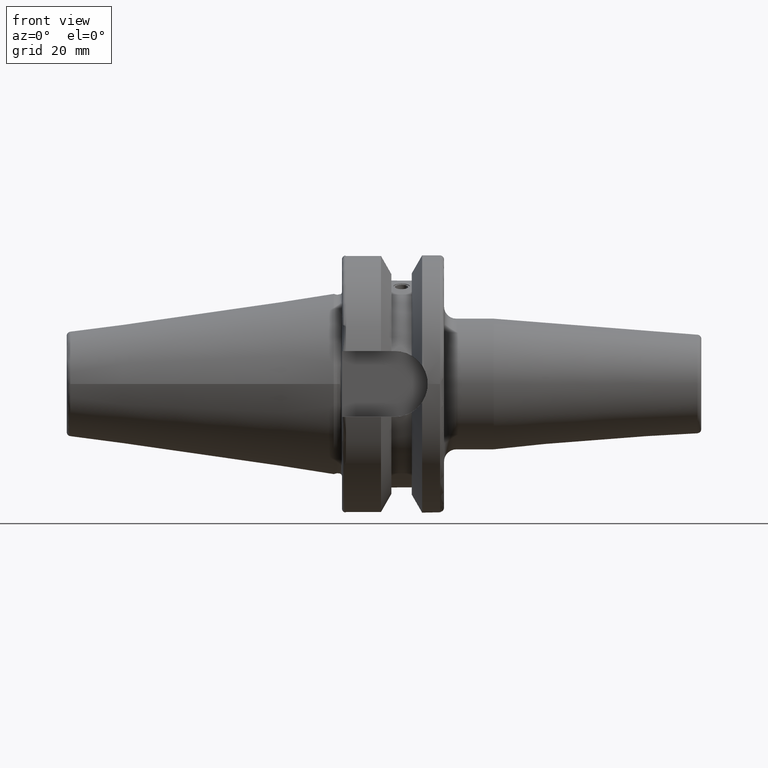
[diagram: clean part render]
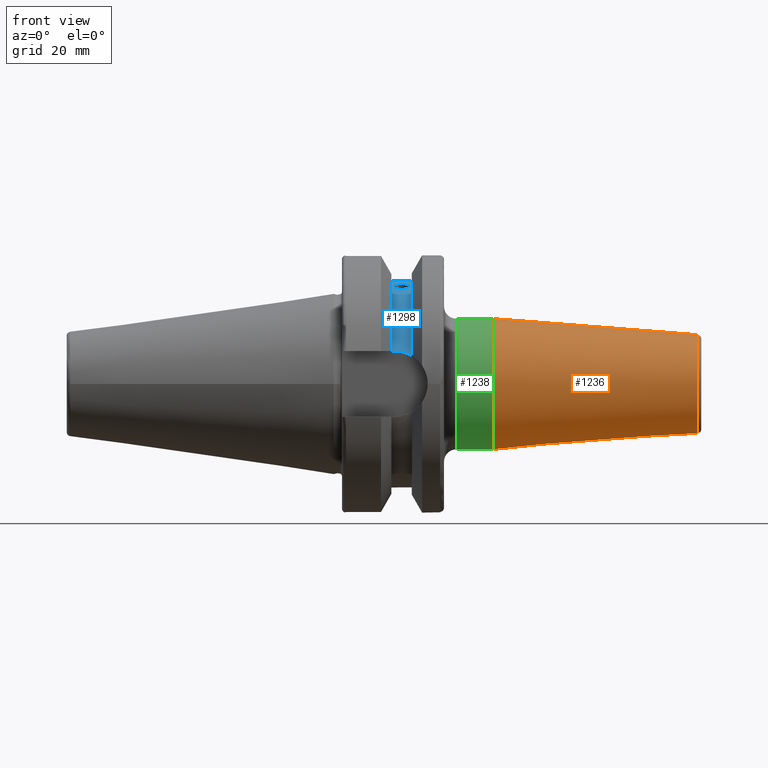
[diagram: same view with three faces highlighted in distinct colors, each labeled with its STEP entity id]
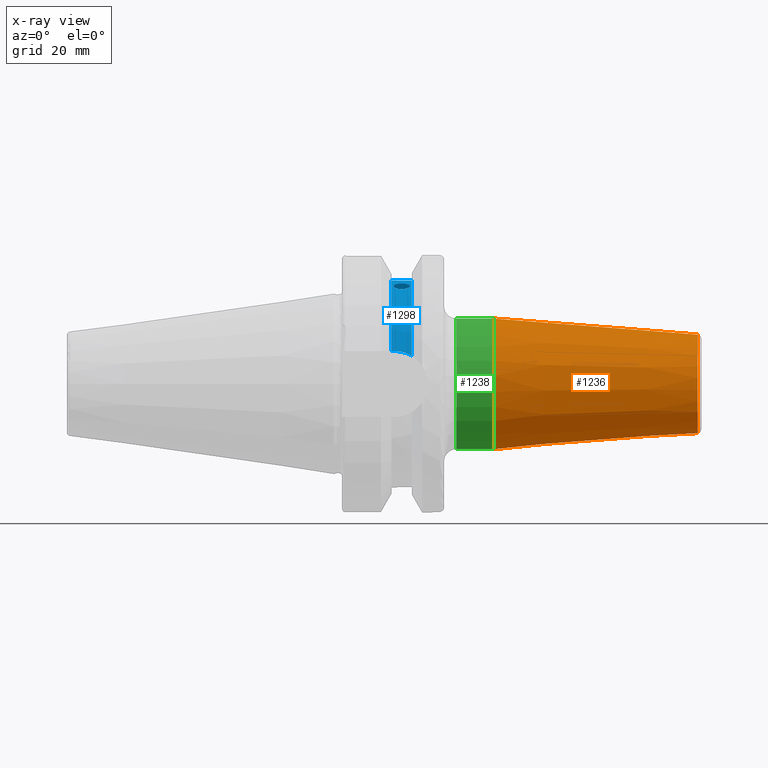
[diagram: x-ray of the same camera — body ghosted, the three highlighted faces saturated]
A machine part, front view with three faces highlighted in distinct colors.
The next image is the same camera in x-ray (body ghosted, the three faces saturated) — at least one of them is partly hidden behind the body in this view.
Their STEP definitions:

[orange] entity #1236 — the highlighted conical surface has half-angle 4.5 deg.
#125=CONICAL_SURFACE('',#1352,14.,0.0785398163397452);
#148=FACE_OUTER_BOUND('',#227,.T.);
#227=EDGE_LOOP('',(#872,#873,#874,#875));
#322=CIRCLE('',#1351,12.0725268420749);
#323=CIRCLE('',#1353,16.);
#391=LINE('',#1961,#457);
#457=VECTOR('',#1563,14.);
#531=VERTEX_POINT('',#1956);
#532=VERTEX_POINT('',#1960);
#662=EDGE_CURVE('',#531,#531,#322,.T.);
#663=EDGE_CURVE('',#531,#532,#391,.T.);
#664=EDGE_CURVE('',#532,#532,#323,.T.);
#872=ORIENTED_EDGE('',*,*,#662,.F.);
#873=ORIENTED_EDGE('',*,*,#663,.T.);
#874=ORIENTED_EDGE('',*,*,#664,.T.);
#875=ORIENTED_EDGE('',*,*,#663,.F.);
#1236=ADVANCED_FACE('',(#148),#125,.T.);
#1351=AXIS2_PLACEMENT_3D('',#1958,#1559,#1560);
#1352=AXIS2_PLACEMENT_3D('',#1959,#1561,#1562);
#1353=AXIS2_PLACEMENT_3D('',#1962,#1564,#1565);
#1559=DIRECTION('center_axis',(1.,0.,0.));
#1560=DIRECTION('ref_axis',(0.,0.,1.));
#1561=DIRECTION('center_axis',(-1.,0.,0.));
#1562=DIRECTION('ref_axis',(0.,0.,-1.));
#1563=DIRECTION('',(-0.996917333733128,-9.60846804471015E-18,0.0784590957278453));
#1564=DIRECTION('center_axis',(1.,0.,0.));
#1565=DIRECTION('ref_axis',(0.,0.,-1.));
#1956=CARTESIAN_POINT('',(89.0784590957279,-1.47845813547676E-15,12.0725268420749));
#1958=CARTESIAN_POINT('Origin',(89.0784590957279,-1.47845813547676E-15,
0.));
#1959=CARTESIAN_POINT('Origin',(64.5875905276507,0.,0.));
#1960=CARTESIAN_POINT('',(39.1751810553014,-1.95943487863577E-15,16.));
#1961=CARTESIAN_POINT('',(64.5875905276507,-1.71450551880629E-15,14.));
#1962=CARTESIAN_POINT('Origin',(39.1751810553015,0.,0.));

[blue] entity #1298 — the highlighted cylindrical surface (partial cylindrical patch) has radius 25.5 mm, axis along (1, 0, 0).
#26=B_SPLINE_CURVE_WITH_KNOTS('',3,(#2095,#2096,#2097,#2098,#2099,#2100,
#2101,#2102,#2103,#2104,#2105,#2106,#2107,#2108,#2109,#2110,#2111,#2112,
#2113,#2114,#2115,#2116,#2117,#2118,#2119,#2120),.UNSPECIFIED.,.F.,.F.,
(4,2,2,2,2,2,2,2,2,2,2,2,4),(0.,0.0753706034311402,0.15074120686228,0.226111713565584,
0.301482220268888,0.376852726972193,0.452223233675497,0.527593837106637,
0.602964440537777,0.678335043968917,0.753705647400057,0.829076154103362,
0.904446660806666),.UNSPECIFIED.);
#27=B_SPLINE_CURVE_WITH_KNOTS('',3,(#2121,#2122,#2123,#2124,#2125,#2126,
#2127,#2128,#2129,#2130),.UNSPECIFIED.,.F.,.F.,(4,2,2,2,4),(0.904446660806666,
0.97981716750997,1.05518767421327,1.13055827764441,1.20592888107555),
 .UNSPECIFIED.);
#35=B_SPLINE_CURVE_WITH_KNOTS('',3,(#2280,#2281,#2282,#2283,#2284,#2285),
 .UNSPECIFIED.,.F.,.F.,(4,2,4),(0.,0.305559393991992,0.418764848000603),
 .UNSPECIFIED.);
#42=B_SPLINE_CURVE_WITH_KNOTS('',3,(#2422,#2423,#2424,#2425,#2426,#2427),
 .UNSPECIFIED.,.F.,.F.,(4,2,4),(-0.418764848000603,-0.305559393991992,0.),
 .UNSPECIFIED.);
#63=FACE_BOUND('',#305,.T.);
#122=CYLINDRICAL_SURFACE('',#1490,25.5);
#210=FACE_OUTER_BOUND('',#304,.T.);
#304=EDGE_LOOP('',(#1185,#1186,#1187,#1188,#1189,#1190));
#305=EDGE_LOOP('',(#1191,#1192));
#380=CIRCLE('',#1489,25.5);
#381=CIRCLE('',#1491,25.5);
#416=LINE('',#2293,#482);
#435=LINE('',#2438,#501);
#482=VECTOR('',#1730,10.);
#501=VECTOR('',#1797,10.);
#553=VERTEX_POINT('',#2092);
#554=VERTEX_POINT('',#2094);
#584=VERTEX_POINT('',#2277);
#585=VERTEX_POINT('',#2279);
#588=VERTEX_POINT('',#2292);
#614=VERTEX_POINT('',#2419);
#615=VERTEX_POINT('',#2421);
#617=VERTEX_POINT('',#2437);
#695=EDGE_CURVE('',#554,#553,#26,.T.);
#696=EDGE_CURVE('',#553,#554,#27,.T.);
#739=EDGE_CURVE('',#585,#584,#35,.T.);
#743=EDGE_CURVE('',#588,#585,#416,.T.);
#782=EDGE_CURVE('',#615,#614,#42,.T.);
#785=EDGE_CURVE('',#614,#617,#435,.T.);
#823=EDGE_CURVE('',#617,#588,#380,.T.);
#824=EDGE_CURVE('',#615,#584,#381,.T.);
#1185=ORIENTED_EDGE('',*,*,#739,.T.);
#1186=ORIENTED_EDGE('',*,*,#824,.F.);
#1187=ORIENTED_EDGE('',*,*,#782,.T.);
#1188=ORIENTED_EDGE('',*,*,#785,.T.);
#1189=ORIENTED_EDGE('',*,*,#823,.T.);
#1190=ORIENTED_EDGE('',*,*,#743,.T.);
#1191=ORIENTED_EDGE('',*,*,#695,.T.);
#1192=ORIENTED_EDGE('',*,*,#696,.T.);
#1298=ADVANCED_FACE('',(#210,#63),#122,.T.);
#1489=AXIS2_PLACEMENT_3D('',#2526,#1893,#1894);
#1490=AXIS2_PLACEMENT_3D('',#2527,#1895,#1896);
#1491=AXIS2_PLACEMENT_3D('',#2528,#1897,#1898);
#1730=DIRECTION('',(1.,0.,0.));
#1797=DIRECTION('',(-1.,0.,0.));
#1893=DIRECTION('center_axis',(1.,0.,0.));
#1894=DIRECTION('ref_axis',(0.,0.,-1.));
#1895=DIRECTION('center_axis',(1.,0.,0.));
#1896=DIRECTION('ref_axis',(0.,1.,0.));
#1897=DIRECTION('center_axis',(1.,0.,0.));
#1898=DIRECTION('ref_axis',(0.,0.,-1.));
#2092=CARTESIAN_POINT('',(18.6,-8.72151365480455,23.9621618300407));
#2094=CARTESIAN_POINT('',(16.6,-10.5740324061887,23.2043064682587));
#2095=CARTESIAN_POINT('Ctrl Pts',(16.6,-10.5740324061887,23.2043064682587));
#2096=CARTESIAN_POINT('Ctrl Pts',(16.3487646552295,-10.5740324061887,23.2043064682587));
#2097=CARTESIAN_POINT('Ctrl Pts',(16.0808539398032,-10.5282360748462,23.2253464640325));
#2098=CARTESIAN_POINT('Ctrl Pts',(15.5881259002915,-10.341480204317,23.3091025219309));
#2099=CARTESIAN_POINT('Ctrl Pts',(15.3632997889944,-10.2004525041704,23.3716147691749));
#2100=CARTESIAN_POINT('Ctrl Pts',(15.0082733140735,-9.87358134491179,23.5115716095889));
#2101=CARTESIAN_POINT('Ctrl Pts',(14.8543700008966,-9.66590292532593,23.5983277097944));
#2102=CARTESIAN_POINT('Ctrl Pts',(14.6502304925719,-9.20795105223416,23.78075666331));
#2103=CARTESIAN_POINT('Ctrl Pts',(14.6,-8.95759735138451,23.87623439169));
#2104=CARTESIAN_POINT('Ctrl Pts',(14.6,-8.48542995822458,24.0480892683913));
#2105=CARTESIAN_POINT('Ctrl Pts',(14.6502304925719,-8.23227599607072,24.1358733420695));
#2106=CARTESIAN_POINT('Ctrl Pts',(14.8543700008966,-7.76420143750494,24.290490445821));
#2107=CARTESIAN_POINT('Ctrl Pts',(15.0082733140735,-7.54934479194869,24.357524532261));
#2108=CARTESIAN_POINT('Ctrl Pts',(15.3632997889944,-7.20898443387373,24.4604201035206));
#2109=CARTESIAN_POINT('Ctrl Pts',(15.5881259002915,-7.0607688498685,24.5031838021693));
#2110=CARTESIAN_POINT('Ctrl Pts',(16.0808539398032,-6.86386819677648,24.5590672990511));
#2111=CARTESIAN_POINT('Ctrl Pts',(16.3487646552295,-6.81526192304506,24.5723870415614));
#2112=CARTESIAN_POINT('Ctrl Pts',(16.8512353447705,-6.81526192304506,24.5723870415614));
#2113=CARTESIAN_POINT('Ctrl Pts',(17.1191460601968,-6.86386819677648,24.5590672990511));
#2114=CARTESIAN_POINT('Ctrl Pts',(17.6118740997085,-7.0607688498685,24.5031838021693));
#2115=CARTESIAN_POINT('Ctrl Pts',(17.8367002110056,-7.20898443387373,24.4604201035206));
#2116=CARTESIAN_POINT('Ctrl Pts',(18.1917266859265,-7.54934479194869,24.357524532261));
#2117=CARTESIAN_POINT('Ctrl Pts',(18.3456299991034,-7.76420143750494,24.290490445821));
#2118=CARTESIAN_POINT('Ctrl Pts',(18.5497695074281,-8.23227599607072,24.1358733420695));
#2119=CARTESIAN_POINT('Ctrl Pts',(18.6,-8.48542995822458,24.0480892683913));
#2120=CARTESIAN_POINT('Ctrl Pts',(18.6,-8.72151365480455,23.9621618300407));
#2121=CARTESIAN_POINT('Ctrl Pts',(18.6,-8.72151365480455,23.9621618300407));
#2122=CARTESIAN_POINT('Ctrl Pts',(18.6,-8.95759735138452,23.87623439169));
#2123=CARTESIAN_POINT('Ctrl Pts',(18.5497695074281,-9.20795105223416,23.78075666331));
#2124=CARTESIAN_POINT('Ctrl Pts',(18.3456299991034,-9.66590292532593,23.5983277097944));
#2125=CARTESIAN_POINT('Ctrl Pts',(18.1917266859265,-9.87358134491179,23.5115716095889));
#2126=CARTESIAN_POINT('Ctrl Pts',(17.8367002110056,-10.2004525041704,23.3716147691749));
#2127=CARTESIAN_POINT('Ctrl Pts',(17.6118740997085,-10.341480204317,23.3091025219309));
#2128=CARTESIAN_POINT('Ctrl Pts',(17.1191460601968,-10.5282360748462,23.2253464640325));
#2129=CARTESIAN_POINT('Ctrl Pts',(16.8512353447705,-10.5740324061887,23.2043064682587));
#2130=CARTESIAN_POINT('Ctrl Pts',(16.6,-10.5740324061887,23.2043064682587));
#2277=CARTESIAN_POINT('',(19.1,-24.5493380766162,6.89782574439221));
#2279=CARTESIAN_POINT('',(14.95,-24.1960224003864,8.05));
#2280=CARTESIAN_POINT('Ctrl Pts',(14.95,-24.1960224003864,8.05));
#2281=CARTESIAN_POINT('Ctrl Pts',(15.9685313133066,-24.1960224003864,8.05));
#2282=CARTESIAN_POINT('Ctrl Pts',(17.0497516664971,-24.2670783971366,7.84501312719341));
#2283=CARTESIAN_POINT('Ctrl Pts',(18.4072379028184,-24.4390565244262,7.28065599998141));
#2284=CARTESIAN_POINT('Ctrl Pts',(18.7625417379862,-24.492291659194,7.10085374759973));
#2285=CARTESIAN_POINT('Ctrl Pts',(19.1,-24.5493380766162,6.89782574439221));
#2292=CARTESIAN_POINT('',(14.1,-24.1960224003864,8.05));
#2293=CARTESIAN_POINT('',(16.6,-24.1960224003864,8.05));
#2419=CARTESIAN_POINT('',(14.95,24.1960224003864,8.05));
#2421=CARTESIAN_POINT('',(19.1,24.5493380766162,6.89782574439221));
#2422=CARTESIAN_POINT('Ctrl Pts',(19.1,24.5493380766162,6.89782574439221));
#2423=CARTESIAN_POINT('Ctrl Pts',(18.7625417379862,24.492291659194,7.10085374759973));
#2424=CARTESIAN_POINT('Ctrl Pts',(18.4072379028184,24.4390565244262,7.28065599998141));
#2425=CARTESIAN_POINT('Ctrl Pts',(17.0497516664971,24.2670783971366,7.84501312719341));
#2426=CARTESIAN_POINT('Ctrl Pts',(15.9685313133066,24.1960224003864,8.05));
#2427=CARTESIAN_POINT('Ctrl Pts',(14.95,24.1960224003864,8.05));
#2437=CARTESIAN_POINT('',(14.1,24.1960224003864,8.05));
#2438=CARTESIAN_POINT('',(16.6,24.1960224003864,8.05));
#2526=CARTESIAN_POINT('Origin',(14.1,0.,0.));
#2527=CARTESIAN_POINT('Origin',(16.6,0.,0.));
#2528=CARTESIAN_POINT('Origin',(19.1,0.,0.));

[green] entity #1238 — the highlighted cylindrical surface (bore or boss wall) has radius 16 mm, axis along (1, 0, 0).
#97=CYLINDRICAL_SURFACE('',#1359,16.);
#150=FACE_OUTER_BOUND('',#229,.T.);
#229=EDGE_LOOP('',(#881,#882,#883,#884,#885));
#323=CIRCLE('',#1353,16.);
#324=CIRCLE('',#1355,16.);
#325=CIRCLE('',#1356,16.);
#392=LINE('',#1972,#458);
#458=VECTOR('',#1578,16.);
#532=VERTEX_POINT('',#1960);
#533=VERTEX_POINT('',#1964);
#534=VERTEX_POINT('',#1965);
#664=EDGE_CURVE('',#532,#532,#323,.T.);
#665=EDGE_CURVE('',#533,#534,#324,.T.);
#666=EDGE_CURVE('',#534,#533,#325,.T.);
#669=EDGE_CURVE('',#532,#534,#392,.T.);
#881=ORIENTED_EDGE('',*,*,#664,.F.);
#882=ORIENTED_EDGE('',*,*,#669,.T.);
#883=ORIENTED_EDGE('',*,*,#665,.F.);
#884=ORIENTED_EDGE('',*,*,#666,.F.);
#885=ORIENTED_EDGE('',*,*,#669,.F.);
#1238=ADVANCED_FACE('',(#150),#97,.T.);
#1353=AXIS2_PLACEMENT_3D('',#1962,#1564,#1565);
#1355=AXIS2_PLACEMENT_3D('',#1966,#1568,#1569);
#1356=AXIS2_PLACEMENT_3D('',#1967,#1570,#1571);
#1359=AXIS2_PLACEMENT_3D('',#1971,#1576,#1577);
#1564=DIRECTION('center_axis',(1.,0.,0.));
#1565=DIRECTION('ref_axis',(0.,0.,-1.));
#1568=DIRECTION('center_axis',(-1.,0.,0.));
#1569=DIRECTION('ref_axis',(0.,-1.22464679914735E-16,1.));
#1570=DIRECTION('center_axis',(-1.,0.,0.));
#1571=DIRECTION('ref_axis',(0.,-1.22464679914735E-16,1.));
#1576=DIRECTION('center_axis',(1.,0.,0.));
#1577=DIRECTION('ref_axis',(0.,0.,-1.));
#1578=DIRECTION('',(-1.,0.,0.));
#1960=CARTESIAN_POINT('',(39.1751810553014,-1.95943487863577E-15,16.));
#1962=CARTESIAN_POINT('Origin',(39.1751810553015,0.,0.));
#1964=CARTESIAN_POINT('',(30.,0.,-16.));
#1965=CARTESIAN_POINT('',(30.,-1.95943487863576E-15,16.));
#1966=CARTESIAN_POINT('Origin',(30.,0.,0.));
#1967=CARTESIAN_POINT('Origin',(30.,0.,0.));
#1971=CARTESIAN_POINT('Origin',(33.0875905276507,0.,0.));
#1972=CARTESIAN_POINT('',(33.0875905276507,-1.95943487863576E-15,16.));